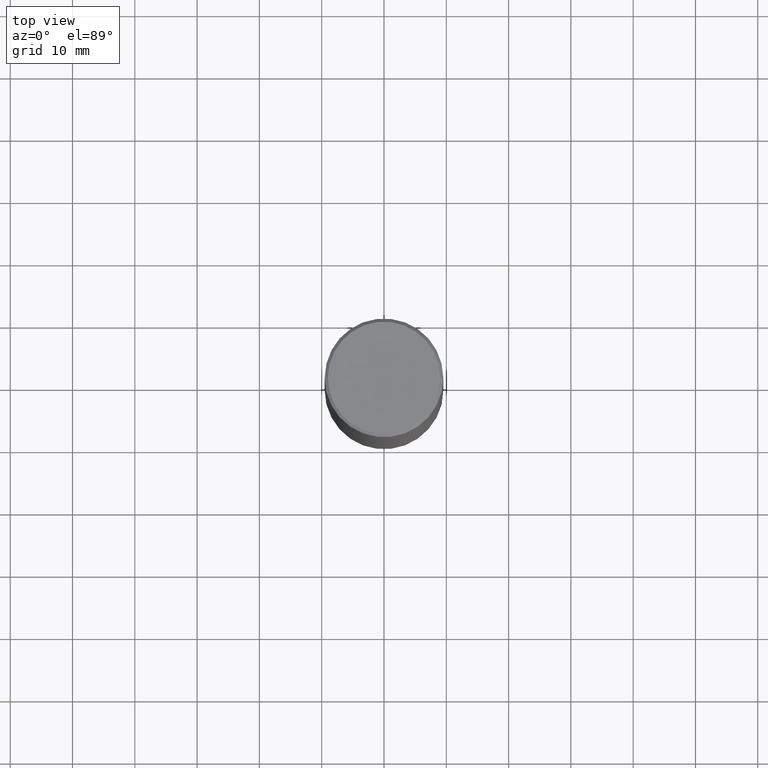
[diagram: clean part render]
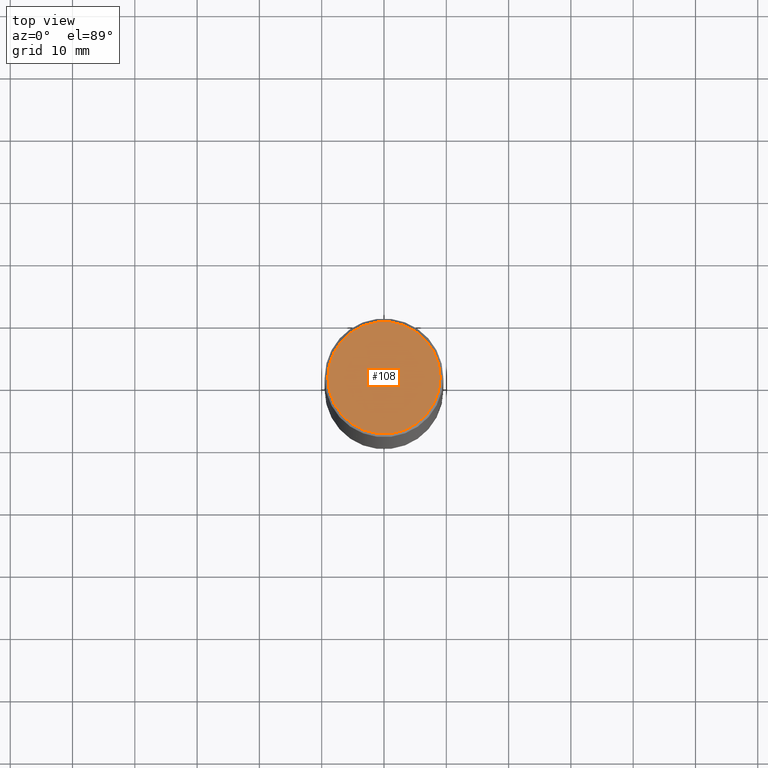
[diagram: same view with one face highlighted and labeled with its STEP entity id]
A machine part, top view. The second image highlights one B-rep face of the part: STEP entity #108.
In plain terms, the highlighted planar face has unit normal (0, -0, -1).
Its self-contained STEP definition (entity closure, byte-faithful):
#12 = DIRECTION ( 'NONE',  ( 1.000000000000000000, -6.982962677686265922E-15, 4.876231632511988183E-29 ) ) ;
#17 = DIRECTION ( 'NONE',  ( -1.000000000000000000, 6.982962677686265922E-15, -4.876176775795935793E-29 ) ) ;
#20 = PLANE ( 'NONE',  #306 ) ;
#48 = AXIS2_PLACEMENT_3D ( 'NONE', #193, #163, #12 ) ;
#55 = CIRCLE ( 'NONE', #66, 0.3549999999999999822 ) ;
#66 = AXIS2_PLACEMENT_3D ( 'NONE', #90, #407, #116 ) ;
#90 = CARTESIAN_POINT ( 'NONE',  ( -1.565777121502829671E-45, 2.235514755570671047E-31, 6.402768735150616610E-17 ) ) ;
#108 = ADVANCED_FACE ( 'NONE', ( #304 ), #20, .F. ) ;
#114 = ORIENTED_EDGE ( 'NONE', *, *, #359, .T. ) ;
#116 = DIRECTION ( 'NONE',  ( 1.000000000000000000, -6.982962677686265922E-15, 4.876231632511988183E-29 ) ) ;
#123 = ORIENTED_EDGE ( 'NONE', *, *, #305, .T. ) ;
#132 = VERTEX_POINT ( 'NONE', #362 ) ;
#163 = DIRECTION ( 'NONE',  ( -2.445468806185136597E-29, 3.491481338843145583E-15, 1.000000000000000000 ) ) ;
#193 = CARTESIAN_POINT ( 'NONE',  ( -1.565777121502829671E-45, 2.235514755570671047E-31, 6.402768735150616610E-17 ) ) ;
#194 = EDGE_LOOP ( 'NONE', ( #114, #123 ) ) ;
#209 = CARTESIAN_POINT ( 'NONE',  ( 2.478951750578624209E-15, 0.3549999999999999822, -1.207462031613563440E-15 ) ) ;
#263 = CIRCLE ( 'NONE', #48, 0.3549999999999999822 ) ;
#298 = CARTESIAN_POINT ( 'NONE',  ( 0.3549999999999999822, -2.538996582575041048E-15, 6.402768735152371826E-17 ) ) ;
#304 = FACE_OUTER_BOUND ( 'NONE', #194, .T. ) ;
#305 = EDGE_CURVE ( 'NONE', #353, #132, #55, .T. ) ;
#306 = AXIS2_PLACEMENT_3D ( 'NONE', #209, #370, #17 ) ;
#353 = VERTEX_POINT ( 'NONE', #298 ) ;
#359 = EDGE_CURVE ( 'NONE', #132, #353, #263, .T. ) ;
#362 = CARTESIAN_POINT ( 'NONE',  ( -0.3549999999999999822, 2.513866563967055464E-15, 6.402768735148871255E-17 ) ) ;
#370 = DIRECTION ( 'NONE',  ( 2.438088387897960049E-29, -3.491481338843145188E-15, -1.000000000000000000 ) ) ;
#407 = DIRECTION ( 'NONE',  ( -2.445468806185136597E-29, 3.491481338843145583E-15, 1.000000000000000000 ) ) ;